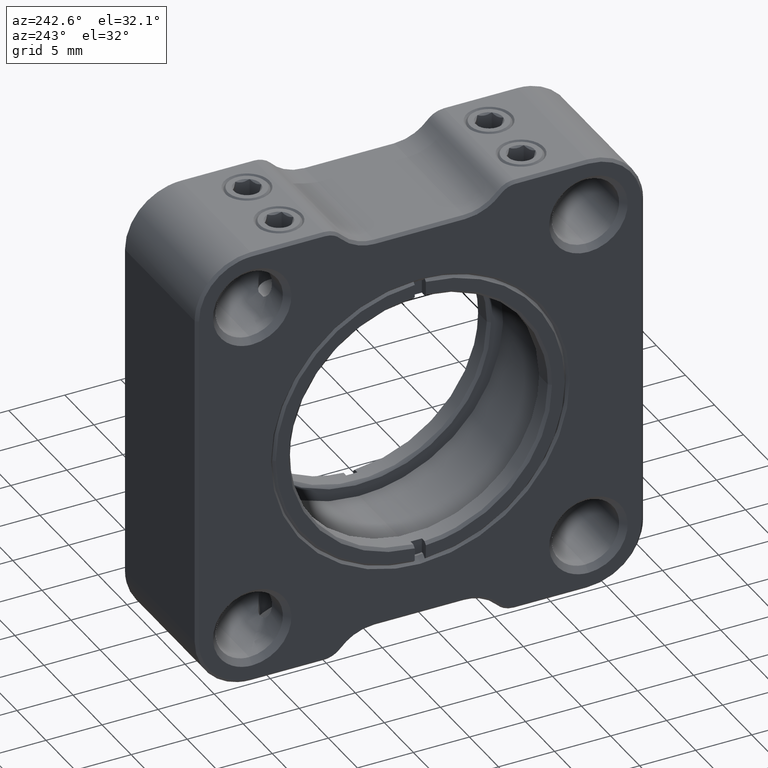
[diagram: clean part render]
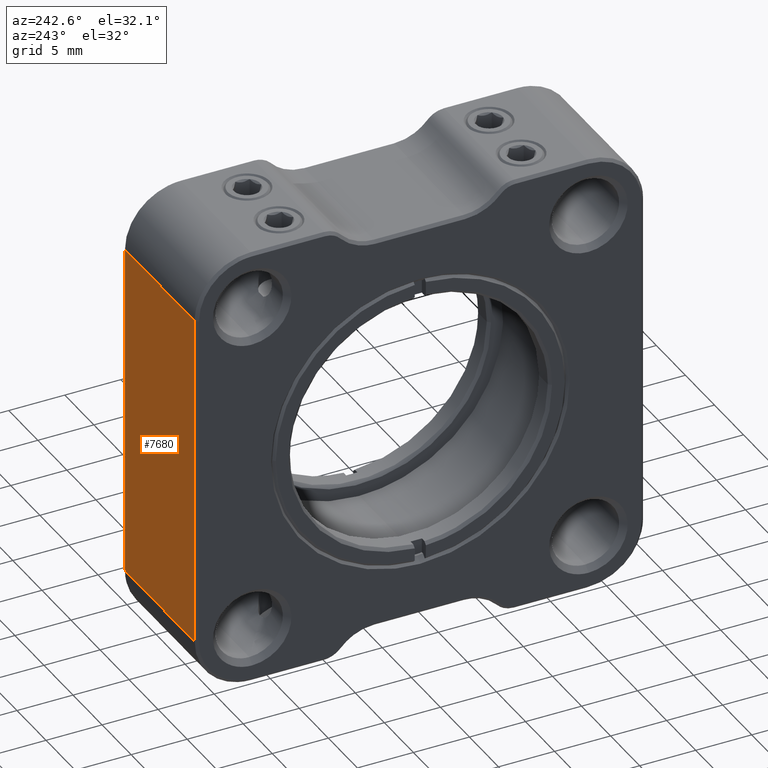
[diagram: same view with one face highlighted and labeled with its STEP entity id]
A machine part, auxiliary view. The second image highlights one B-rep face of the part: STEP entity #7680.
In plain terms, the highlighted face is a freeform B-spline surface patch.
Its self-contained STEP definition (entity closure, byte-faithful):
#315 = B_SPLINE_SURFACE_WITH_KNOTS ( 'NONE', 1, 1, ( 
 ( #1524, #5165 ),
 ( #2707, #8819 ) ),
 .UNSPECIFIED., .F., .F., .F.,
 ( 2, 2 ),
 ( 2, 2 ),
 ( 0.000000000000000000, 1.000000000000000000 ),
 ( 0.000000000000000000, 1.000000000000000000 ),
 .UNSPECIFIED. ) ;
#691 = ORIENTED_EDGE ( 'NONE', *, *, #6459, .F. ) ;
#1013 = CARTESIAN_POINT ( 'NONE',  ( -20.70960063692990261, 22.10930122340910131, 25.00000000000000000 ) ) ;
#1034 = CARTESIAN_POINT ( 'NONE',  ( -20.70960063692990261, 22.10930122340910131, 55.00000000000000000 ) ) ;
#1410 = CARTESIAN_POINT ( 'NONE',  ( -8.709600636929948791, 22.10930122340910131, 55.00000000000000000 ) ) ;
#1524 = CARTESIAN_POINT ( 'NONE',  ( -8.709600636929948791, 22.10930122340910131, 25.00000000000000000 ) ) ;
#2448 = EDGE_CURVE ( 'NONE', #6431, #11003, #5327, .T. ) ;
#2492 = B_SPLINE_CURVE_WITH_KNOTS ( 'NONE', 1,
 ( #2738, #1013 ),
 .UNSPECIFIED., .F., .F.,
 ( 2, 2 ),
 ( 0.000000000000000000, 1.000000000000000000 ),
 .UNSPECIFIED. ) ;
#2707 = CARTESIAN_POINT ( 'NONE',  ( -20.70960063692990261, 22.10930122340910131, 25.00000000000000000 ) ) ;
#2738 = CARTESIAN_POINT ( 'NONE',  ( -8.709600636929948791, 22.10930122340910131, 25.00000000000000000 ) ) ;
#3206 = CARTESIAN_POINT ( 'NONE',  ( -20.70960063692990261, 22.10930122340910131, 55.00000000000000000 ) ) ;
#3616 = CARTESIAN_POINT ( 'NONE',  ( -20.70960063692990261, 22.10930122340910131, 55.00000000000000000 ) ) ;
#4587 = ORIENTED_EDGE ( 'NONE', *, *, #2448, .F. ) ;
#5067 = EDGE_CURVE ( 'NONE', #9520, #8922, #2492, .T. ) ;
#5134 = CARTESIAN_POINT ( 'NONE',  ( -8.709600636929948791, 22.10930122340910131, 55.00000000000000000 ) ) ;
#5165 = CARTESIAN_POINT ( 'NONE',  ( -8.709600636929948791, 22.10930122340910131, 55.00000000000000000 ) ) ;
#5327 = B_SPLINE_CURVE_WITH_KNOTS ( 'NONE', 1,
 ( #1410, #3206 ),
 .UNSPECIFIED., .F., .F.,
 ( 2, 2 ),
 ( 0.000000000000000000, 1.000000000000000000 ),
 .UNSPECIFIED. ) ;
#5340 = B_SPLINE_CURVE_WITH_KNOTS ( 'NONE', 1,
 ( #11528, #5134 ),
 .UNSPECIFIED., .F., .F.,
 ( 2, 2 ),
 ( 0.000000000000000000, 1.000000000000000000 ),
 .UNSPECIFIED. ) ;
#6431 = VERTEX_POINT ( 'NONE', #8270 ) ;
#6459 = EDGE_CURVE ( 'NONE', #11003, #8922, #8350, .T. ) ;
#6686 = CARTESIAN_POINT ( 'NONE',  ( -20.70960063692990261, 22.10930122340910131, 25.00000000000000000 ) ) ;
#6851 = EDGE_CURVE ( 'NONE', #9520, #6431, #5340, .T. ) ;
#7505 = ORIENTED_EDGE ( 'NONE', *, *, #6851, .F. ) ;
#7680 = ADVANCED_FACE ( 'NONE', ( #9715 ), #315, .T. ) ;
#8086 = ORIENTED_EDGE ( 'NONE', *, *, #5067, .T. ) ;
#8270 = CARTESIAN_POINT ( 'NONE',  ( -8.709600636929948791, 22.10930122340910131, 55.00000000000000000 ) ) ;
#8350 = B_SPLINE_CURVE_WITH_KNOTS ( 'NONE', 1,
 ( #3616, #10797 ),
 .UNSPECIFIED., .F., .F.,
 ( 2, 2 ),
 ( 0.000000000000000000, 1.000000000000000000 ),
 .UNSPECIFIED. ) ;
#8819 = CARTESIAN_POINT ( 'NONE',  ( -20.70960063692990261, 22.10930122340910131, 55.00000000000000000 ) ) ;
#8922 = VERTEX_POINT ( 'NONE', #6686 ) ;
#9520 = VERTEX_POINT ( 'NONE', #10354 ) ;
#9715 = FACE_OUTER_BOUND ( 'NONE', #10101, .T. ) ;
#10101 = EDGE_LOOP ( 'NONE', ( #4587, #7505, #8086, #691 ) ) ;
#10354 = CARTESIAN_POINT ( 'NONE',  ( -8.709600636929948791, 22.10930122340910131, 25.00000000000000000 ) ) ;
#10797 = CARTESIAN_POINT ( 'NONE',  ( -20.70960063692990261, 22.10930122340910131, 25.00000000000000000 ) ) ;
#11003 = VERTEX_POINT ( 'NONE', #1034 ) ;
#11528 = CARTESIAN_POINT ( 'NONE',  ( -8.709600636929948791, 22.10930122340910131, 25.00000000000000000 ) ) ;